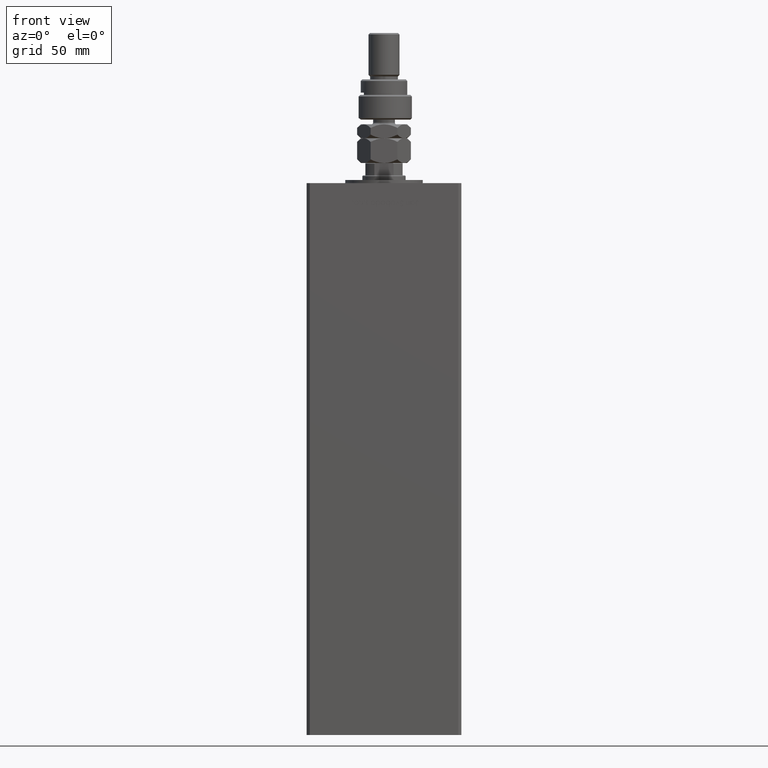
[diagram: clean part render]
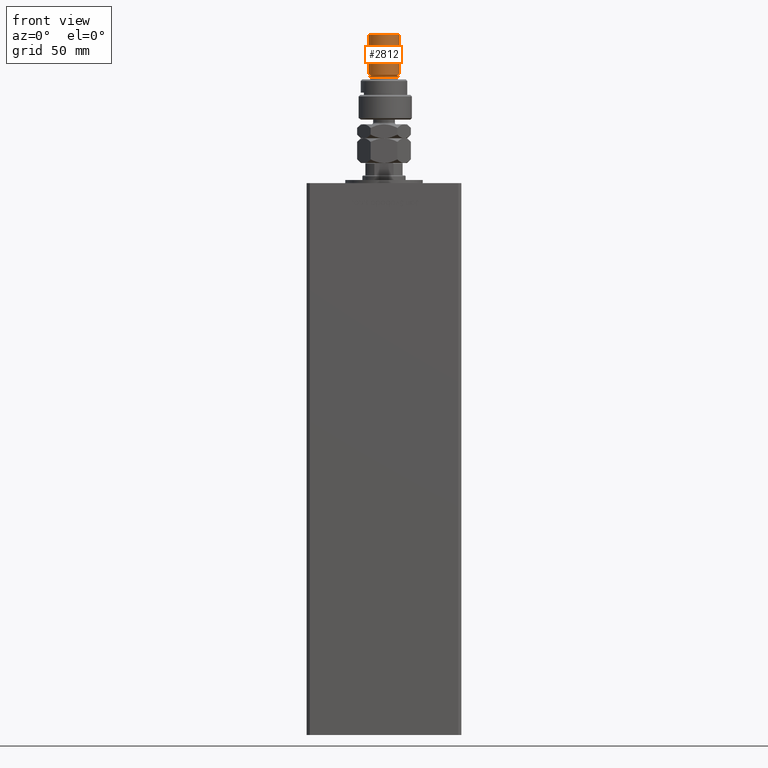
[diagram: same view with one face highlighted and labeled with its STEP entity id]
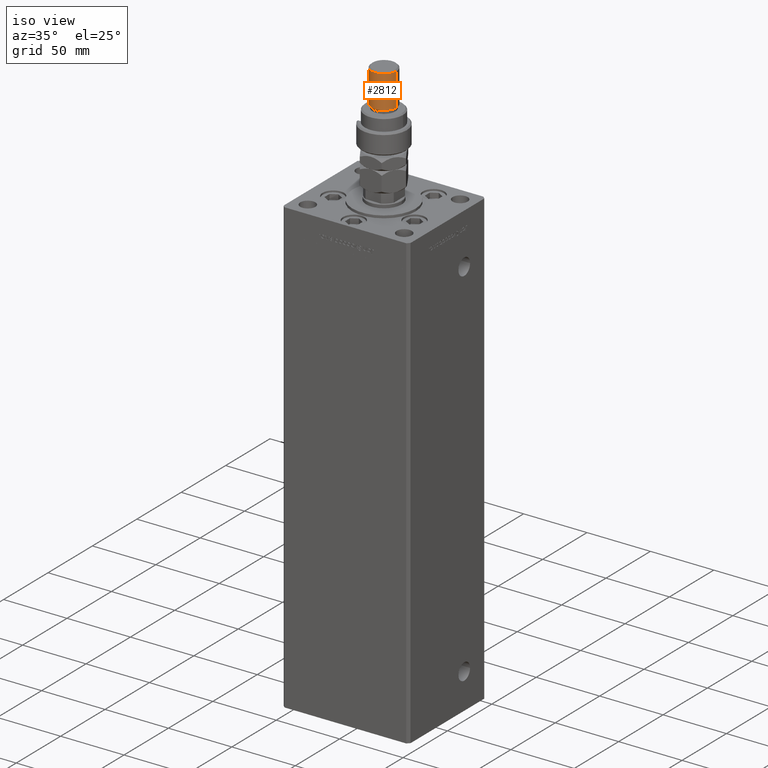
[diagram: same view with one face highlighted and labeled with its STEP entity id]
A machine part, front view. The second image highlights one B-rep face of the part: STEP entity #2812.
A second angle (iso view) of the same face is appended — the face is thin or edge-on in the first view.
In plain terms, the highlighted cylindrical surface (edge-blend (fillet) strip) has radius 10 mm, axis along (-0, -0, -1).
Its self-contained STEP definition (entity closure, byte-faithful):
#1309 = CIRCLE ( 'NONE', #7551, 10.00000000000000000 ) ;
#1336 = LINE ( 'NONE', #18296, #46328 ) ;
#2626 = EDGE_CURVE ( 'NONE', #38910, #41887, #1336, .T. ) ;
#2812 = ADVANCED_FACE ( 'NONE', ( #45832 ), #46095, .T. ) ;
#3582 = ORIENTED_EDGE ( 'NONE', *, *, #21161, .T. ) ;
#3888 = LINE ( 'NONE', #37283, #24521 ) ;
#7551 = AXIS2_PLACEMENT_3D ( 'NONE', #46978, #47253, #34738 ) ;
#7972 = DIRECTION ( 'NONE',  ( -1.000000000000000000, 0.000000000000000000, 0.000000000000000000 ) ) ;
#12354 = AXIS2_PLACEMENT_3D ( 'NONE', #41352, #24611, #20432 ) ;
#15336 = CARTESIAN_POINT ( 'NONE',  ( 10.00000000000000000, 1.224646799147353256E-15, 54.99999999999998579 ) ) ;
#16759 = CIRCLE ( 'NONE', #12354, 10.00000000000000000 ) ;
#17207 = DIRECTION ( 'NONE',  ( -0.000000000000000000, -0.000000000000000000, -1.000000000000000000 ) ) ;
#18296 = CARTESIAN_POINT ( 'NONE',  ( 10.00000000000000000, 1.224646799147353256E-15, 56.00000000000000711 ) ) ;
#20432 = DIRECTION ( 'NONE',  ( 1.000000000000000000, 0.000000000000000000, 0.000000000000000000 ) ) ;
#21161 = EDGE_CURVE ( 'NONE', #30450, #47277, #3888, .T. ) ;
#23170 = AXIS2_PLACEMENT_3D ( 'NONE', #49708, #29655, #7972 ) ;
#24521 = VECTOR ( 'NONE', #46182, 1000.000000000000000 ) ;
#24611 = DIRECTION ( 'NONE',  ( -0.000000000000000000, -0.000000000000000000, 1.000000000000000000 ) ) ;
#27084 = EDGE_LOOP ( 'NONE', ( #54195, #52027, #3582, #31029 ) ) ;
#28457 = CARTESIAN_POINT ( 'NONE',  ( 10.00000000000000000, 1.224646799147353256E-15, 29.00000000000000711 ) ) ;
#29655 = DIRECTION ( 'NONE',  ( -0.000000000000000000, -0.000000000000000000, -1.000000000000000000 ) ) ;
#30450 = VERTEX_POINT ( 'NONE', #51553 ) ;
#31029 = ORIENTED_EDGE ( 'NONE', *, *, #53861, .T. ) ;
#34738 = DIRECTION ( 'NONE',  ( 1.000000000000000000, 0.000000000000000000, 0.000000000000000000 ) ) ;
#37283 = CARTESIAN_POINT ( 'NONE',  ( -10.00000000000000000, 0.000000000000000000, 56.00000000000000711 ) ) ;
#38910 = VERTEX_POINT ( 'NONE', #15336 ) ;
#41218 = EDGE_CURVE ( 'NONE', #38910, #30450, #1309, .T. ) ;
#41352 = CARTESIAN_POINT ( 'NONE',  ( 0.000000000000000000, 0.000000000000000000, 29.00000000000000711 ) ) ;
#41887 = VERTEX_POINT ( 'NONE', #28457 ) ;
#45832 = FACE_OUTER_BOUND ( 'NONE', #27084, .T. ) ;
#46095 = CYLINDRICAL_SURFACE ( 'NONE', #23170, 10.00000000000000000 ) ;
#46182 = DIRECTION ( 'NONE',  ( -0.000000000000000000, -0.000000000000000000, -1.000000000000000000 ) ) ;
#46328 = VECTOR ( 'NONE', #17207, 1000.000000000000000 ) ;
#46342 = CARTESIAN_POINT ( 'NONE',  ( -10.00000000000000000, 0.000000000000000000, 29.00000000000000711 ) ) ;
#46978 = CARTESIAN_POINT ( 'NONE',  ( 0.000000000000000000, 0.000000000000000000, 54.99999999999998579 ) ) ;
#47253 = DIRECTION ( 'NONE',  ( 0.000000000000000000, 0.000000000000000000, -1.000000000000000000 ) ) ;
#47277 = VERTEX_POINT ( 'NONE', #46342 ) ;
#49708 = CARTESIAN_POINT ( 'NONE',  ( 0.000000000000000000, 0.000000000000000000, 56.00000000000000711 ) ) ;
#51553 = CARTESIAN_POINT ( 'NONE',  ( -10.00000000000000000, 0.000000000000000000, 54.99999999999998579 ) ) ;
#52027 = ORIENTED_EDGE ( 'NONE', *, *, #41218, .T. ) ;
#53861 = EDGE_CURVE ( 'NONE', #47277, #41887, #16759, .T. ) ;
#54195 = ORIENTED_EDGE ( 'NONE', *, *, #2626, .F. ) ;